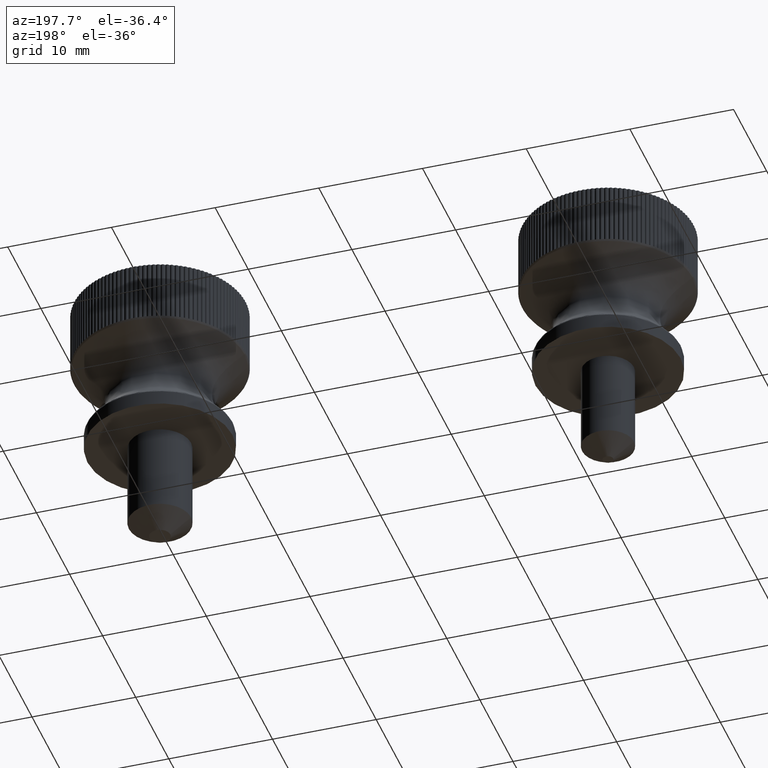
[diagram: clean part render]
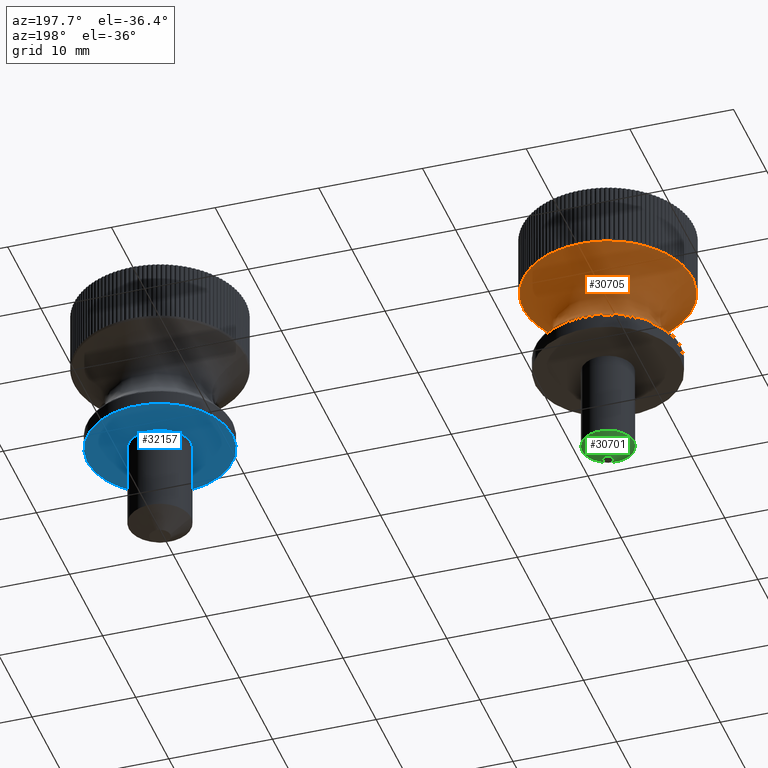
[diagram: same view with three faces highlighted in distinct colors, each labeled with its STEP entity id]
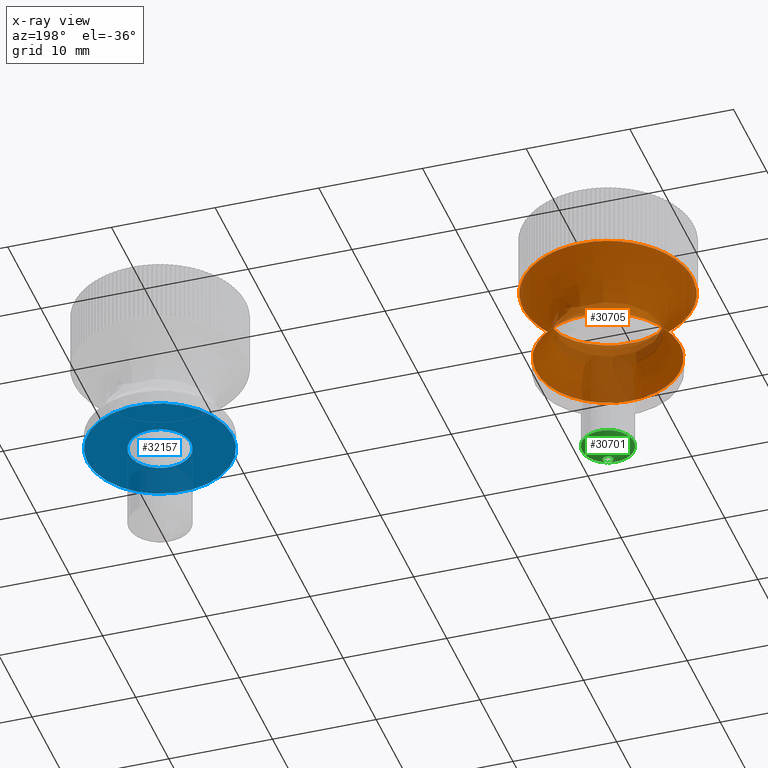
[diagram: x-ray of the same camera — body ghosted, the three highlighted faces saturated]
A machine part, auxiliary view with three faces highlighted in distinct colors.
The next image is the same camera in x-ray (body ghosted, the three faces saturated) — at least one of them is partly hidden behind the body in this view.
Their STEP definitions:

[orange] entity #30705 — the highlighted face is a freeform B-spline surface patch.
#2428=B_SPLINE_CURVE_WITH_KNOTS('',3,(#45505,#45506,#45507,#45508,#45509,
#45510,#45511,#45512,#45513,#45514),.UNSPECIFIED.,.T.,.F.,(4,1,1,1,1,1,
1,4),(0.,0.897597901025655,1.79519580205131,2.69279370307697,3.59039160410262,
4.48798950512828,5.38558740615393,6.28318530717959),.UNSPECIFIED.);
#2429=B_SPLINE_CURVE_WITH_KNOTS('',3,(#45584,#45585,#45586,#45587,#45588,
#45589),.UNSPECIFIED.,.F.,.F.,(4,2,4),(0.00706038556069299,0.438881228920565,
0.991385236136452),.UNSPECIFIED.);
#2430=B_SPLINE_CURVE_WITH_KNOTS('',3,(#45590,#45591,#45592,#45593,#45594,
#45595,#45596,#45597,#45598,#45599,#45600,#45601,#45602,#45603,#45604,#45605,
#45606),.UNSPECIFIED.,.T.,.F.,(4,1,1,1,1,1,1,1,1,1,1,1,1,1,4),(-3.14159265358979,
-2.69279370307697,-2.24399475256414,-1.79519580205131,-1.34639685153848,
-0.897597901025655,-0.448798950512828,-0.149599650170943,0.448798950512828,
0.897597901025655,1.34639685153848,1.79519580205131,2.24399475256414,2.69279370307697,
3.14159265358979),.UNSPECIFIED.);
#4362=B_SPLINE_SURFACE_WITH_KNOTS('',3,3,((#45515,#45516,#45517,#45518),
(#45519,#45520,#45521,#45522),(#45523,#45524,#45525,#45526),(#45527,#45528,
#45529,#45530),(#45531,#45532,#45533,#45534),(#45535,#45536,#45537,#45538),
(#45539,#45540,#45541,#45542),(#45543,#45544,#45545,#45546),(#45547,#45548,
#45549,#45550),(#45551,#45552,#45553,#45554),(#45555,#45556,#45557,#45558),
(#45559,#45560,#45561,#45562),(#45563,#45564,#45565,#45566),(#45567,#45568,
#45569,#45570),(#45571,#45572,#45573,#45574),(#45575,#45576,#45577,#45578),
(#45579,#45580,#45581,#45582)),.UNSPECIFIED.,.T.,.F.,.F.,(4,1,1,1,1,1,1,
1,1,1,1,1,1,1,4),(4,4),(-5.24696346380969E-33,0.0714285714285714,0.142857142857143,
0.214285714285714,0.285714285714286,0.357142857142857,0.428571428571429,
0.476190476190476,0.571428571428571,0.619047619047619,0.714285714285714,
0.785714285714286,0.857142857142857,0.928571428571429,1.),(0.00706038556069277,
0.991385236136452),.UNSPECIFIED.);
#6069=FACE_OUTER_BOUND('',#8249,.T.);
#8249=EDGE_LOOP('',(#20576,#20577,#20578,#20579));
#12604=VERTEX_POINT('',#45492);
#12606=VERTEX_POINT('',#45583);
#15506=EDGE_CURVE('',#12604,#12604,#2428,.T.);
#15507=EDGE_CURVE('',#12604,#12606,#2429,.T.);
#15508=EDGE_CURVE('',#12606,#12606,#2430,.T.);
#20576=ORIENTED_EDGE('',*,*,#15506,.F.);
#20577=ORIENTED_EDGE('',*,*,#15507,.T.);
#20578=ORIENTED_EDGE('',*,*,#15508,.F.);
#20579=ORIENTED_EDGE('',*,*,#15507,.F.);
#30705=ADVANCED_FACE('',(#6069),#4362,.T.);
#45492=CARTESIAN_POINT('',(-6.93627314721261,-1.18558281596421E-15,1.55888525799984));
#45505=CARTESIAN_POINT('Ctrl Pts',(-6.9410122677611,0.000142491652813912,
1.55888525799984));
#45506=CARTESIAN_POINT('Ctrl Pts',(-6.94073269133758,2.06964195002988,1.55888525799984));
#45507=CARTESIAN_POINT('Ctrl Pts',(-4.95034509371512,6.20569705457734,1.55888525799984));
#45508=CARTESIAN_POINT('Ctrl Pts',(1.76796414997845,7.74568170890814,1.55888525799984));
#45509=CARTESIAN_POINT('Ctrl Pts',(7.15027366841787,3.44311571488876,1.55888525799984));
#45510=CARTESIAN_POINT('Ctrl Pts',(7.15738775485074,-3.44652091877162,1.55888525799984));
#45511=CARTESIAN_POINT('Ctrl Pts',(1.76576836259289,-7.73728883380656,1.55888525799984));
#45512=CARTESIAN_POINT('Ctrl Pts',(-4.95202255225623,-6.21129969568504,
1.55888525799984));
#45513=CARTESIAN_POINT('Ctrl Pts',(-6.94129184418462,-2.06935696672425,
1.55888525799984));
#45514=CARTESIAN_POINT('Ctrl Pts',(-6.9410122677611,0.000142491652813912,
1.55888525799984));
#45515=CARTESIAN_POINT('Ctrl Pts',(-6.93659509277099,-2.64434204536289E-5,
1.55888525799984));
#45516=CARTESIAN_POINT('Ctrl Pts',(-3.99898448638526,-4.49854883233764E-5,
4.29342436986928));
#45517=CARTESIAN_POINT('Ctrl Pts',(-4.40387383724155,-5.47268835152633E-5,
6.75466806568818));
#45518=CARTESIAN_POINT('Ctrl Pts',(-8.15122335976201,-3.10737795189008E-5,
8.94261634545652));
#45519=CARTESIAN_POINT('Ctrl Pts',(-6.93655570876999,-1.03749061785009,
1.55888525799984));
#45520=CARTESIAN_POINT('Ctrl Pts',(-3.99898752326789,-0.598164021897022,
4.29342436986928));
#45521=CARTESIAN_POINT('Ctrl Pts',(-4.403881670935,-0.658734820782433,6.75466806568819));
#45522=CARTESIAN_POINT('Ctrl Pts',(-8.15117707944946,-1.2191597818023,8.94261634545652));
#45523=CARTESIAN_POINT('Ctrl Pts',(-6.46308137475766,-3.11256940948825,
1.55888525799984));
#45524=CARTESIAN_POINT('Ctrl Pts',(-3.72594845020308,-1.79440682829829,
4.29342436986928));
#45525=CARTESIAN_POINT('Ctrl Pts',(-4.10318422458277,-1.97608592128289,
6.75466806568818));
#45526=CARTESIAN_POINT('Ctrl Pts',(-7.59479531000307,-3.65759398381809,
8.94261634545651));
#45527=CARTESIAN_POINT('Ctrl Pts',(-4.47295872184112,-5.60896599974282,
1.55888525799984));
#45528=CARTESIAN_POINT('Ctrl Pts',(-2.57870061478446,-3.23378001637687,
4.29342436986928));
#45529=CARTESIAN_POINT('Ctrl Pts',(-2.83979175682371,-3.56122545468017,
6.75466806568817));
#45530=CARTESIAN_POINT('Ctrl Pts',(-5.25619343973525,-6.59112058145961,
8.9426163454565));
#45531=CARTESIAN_POINT('Ctrl Pts',(-1.59595728182452,-6.99323126397291,
1.55888525799984));
#45532=CARTESIAN_POINT('Ctrl Pts',(-0.920165162855635,-4.0314680861249,
4.29342436986927));
#45533=CARTESIAN_POINT('Ctrl Pts',(-1.01334528849677,-4.43961713355039,
6.75466806568817));
#45534=CARTESIAN_POINT('Ctrl Pts',(-1.8754164114823,-8.21777677329334,8.9426163454565));
#45535=CARTESIAN_POINT('Ctrl Pts',(1.59531222920229,-6.99348773614617,1.55888525799984));
#45536=CARTESIAN_POINT('Ctrl Pts',(0.91989036600288,-4.03156921862864,4.29342436986928));
#45537=CARTESIAN_POINT('Ctrl Pts',(1.01305959940466,-4.43972035678931,6.75466806568816));
#45538=CARTESIAN_POINT('Ctrl Pts',(1.87465840731279,-8.21807815487059,8.9426163454565));
#45539=CARTESIAN_POINT('Ctrl Pts',(4.47334228236746,-5.60797117948955,1.55888525799984));
#45540=CARTESIAN_POINT('Ctrl Pts',(2.57796903899002,-3.23303771902565,4.29342436986928));
#45541=CARTESIAN_POINT('Ctrl Pts',(2.83881996194001,-3.56037856671523,6.75466806568816));
#45542=CARTESIAN_POINT('Ctrl Pts',(5.25664416339439,-6.58995156381063,8.9426163454565));
#45543=CARTESIAN_POINT('Ctrl Pts',(6.23946520170621,-3.39020877999017,1.55888525799984));
#45544=CARTESIAN_POINT('Ctrl Pts',(3.59802952831995,-1.95423955104638,4.29342436986928));
#45545=CARTESIAN_POINT('Ctrl Pts',(3.9624876378636,-2.15206165405761,6.75466806568817));
#45546=CARTESIAN_POINT('Ctrl Pts',(7.33202296290484,-3.98384922751588,8.9426163454565));
#45547=CARTESIAN_POINT('Ctrl Pts',(7.17229747483685,-0.379481484938928,
1.55888525799984));
#45548=CARTESIAN_POINT('Ctrl Pts',(4.13396678016579,-0.219134788096569,
4.29342436986928));
#45549=CARTESIAN_POINT('Ctrl Pts',(4.55236562208221,-0.241384829866832,
6.75466806568816));
#45550=CARTESIAN_POINT('Ctrl Pts',(8.42819826415697,-0.445930359673868,
8.9426163454565));
#45551=CARTESIAN_POINT('Ctrl Pts',(6.74112220881939,2.47613920050433,1.55888525799984));
#45552=CARTESIAN_POINT('Ctrl Pts',(3.88650642503551,1.42786777823971,4.29342436986927));
#45553=CARTESIAN_POINT('Ctrl Pts',(4.28004475829902,1.57249940883918,6.75466806568817));
#45554=CARTESIAN_POINT('Ctrl Pts',(7.92152231529326,2.90972204997344,8.9426163454565));
#45555=CARTESIAN_POINT('Ctrl Pts',(4.76754469364469,5.36975566562131,1.55888525799984));
#45556=CARTESIAN_POINT('Ctrl Pts',(2.74886818005904,3.09555472852831,4.29342436986928));
#45557=CARTESIAN_POINT('Ctrl Pts',(3.02724725540437,3.40894945241564,6.75466806568816));
#45558=CARTESIAN_POINT('Ctrl Pts',(5.60236270905384,6.31002346719677,8.9426163454565));
#45559=CARTESIAN_POINT('Ctrl Pts',(1.9543276572283,6.99738667408694,1.55888525799984));
#45560=CARTESIAN_POINT('Ctrl Pts',(1.12617085742253,4.03385298858422,4.29342436986927));
#45561=CARTESIAN_POINT('Ctrl Pts',(1.24010458300473,4.4422416342415,6.75466806568817));
#45562=CARTESIAN_POINT('Ctrl Pts',(2.29653901361924,8.22265981396934,8.9426163454565));
#45563=CARTESIAN_POINT('Ctrl Pts',(-1.59757264271848,6.99173205713629,1.55888525799984));
#45564=CARTESIAN_POINT('Ctrl Pts',(-0.920660157411978,4.03073757760071,
4.29342436986928));
#45565=CARTESIAN_POINT('Ctrl Pts',(-1.01381431598822,4.43883599549537,6.75466806568816));
#45566=CARTESIAN_POINT('Ctrl Pts',(-1.87731462916363,8.21601504875496,8.9426163454565));
#45567=CARTESIAN_POINT('Ctrl Pts',(-4.47166126029394,5.60915551447088,1.55888525799984));
#45568=CARTESIAN_POINT('Ctrl Pts',(-2.57800781000917,3.23354607662608,4.29342436986928));
#45569=CARTESIAN_POINT('Ctrl Pts',(-2.83903843170414,3.56090797650199,6.75466806568817));
#45570=CARTESIAN_POINT('Ctrl Pts',(-5.25466878697257,6.59134328104892,8.9426163454565));
#45571=CARTESIAN_POINT('Ctrl Pts',(-6.46331767876363,3.11221563708956,1.55888525799984));
#45572=CARTESIAN_POINT('Ctrl Pts',(-3.72593022890732,1.7943073901539,4.29342436986928));
#45573=CARTESIAN_POINT('Ctrl Pts',(-4.10313722242205,1.97599464211061,6.75466806568817));
#45574=CARTESIAN_POINT('Ctrl Pts',(-7.59507299187836,3.65717826431859,8.9426163454565));
#45575=CARTESIAN_POINT('Ctrl Pts',(-6.93663447677198,1.03743773100918,1.55888525799984));
#45576=CARTESIAN_POINT('Ctrl Pts',(-3.99898144950263,0.598074050920375,
4.29342436986928));
#45577=CARTESIAN_POINT('Ctrl Pts',(-4.40386600354809,0.658625367015402,
6.75466806568818));
#45578=CARTESIAN_POINT('Ctrl Pts',(-8.15126964007456,1.21909763424326,8.94261634545652));
#45579=CARTESIAN_POINT('Ctrl Pts',(-6.93659509277099,-2.64434204536289E-5,
1.55888525799984));
#45580=CARTESIAN_POINT('Ctrl Pts',(-3.99898448638526,-4.49854883233764E-5,
4.29342436986928));
#45581=CARTESIAN_POINT('Ctrl Pts',(-4.40387383724155,-5.47268835152633E-5,
6.75466806568818));
#45582=CARTESIAN_POINT('Ctrl Pts',(-8.15122335976201,-3.10737795189008E-5,
8.94261634545652));
#45583=CARTESIAN_POINT('',(-8.15084504012234,-1.75274469428049E-15,8.9426163454565));
#45584=CARTESIAN_POINT('Ctrl Pts',(-6.93627314721261,-1.19417045999603E-17,
1.55888525799984));
#45585=CARTESIAN_POINT('Ctrl Pts',(-5.64758944876273,-2.54700537712144E-16,
2.75852070842793));
#45586=CARTESIAN_POINT('Ctrl Pts',(-5.00216506635853,-4.54827769370049E-16,
3.90555895576132));
#45587=CARTESIAN_POINT('Ctrl Pts',(-4.99722985155216,-8.13835133304365E-16,
6.40031004038283));
#45588=CARTESIAN_POINT('Ctrl Pts',(-6.04751153159294,-9.45556527831262E-16,
7.71451548886833));
#45589=CARTESIAN_POINT('Ctrl Pts',(-8.15084504012234,-1.00748758315437E-15,
8.9426163454565));
#45590=CARTESIAN_POINT('Ctrl Pts',(-8.15117333212948,2.02688610123641E-5,
8.94261634545648));
#45591=CARTESIAN_POINT('Ctrl Pts',(-8.15115849508877,-1.2191040241732,8.94261634545648));
#45592=CARTESIAN_POINT('Ctrl Pts',(-7.59480857500514,-3.65738650432062,
8.9426163454565));
#45593=CARTESIAN_POINT('Ctrl Pts',(-5.25602581266636,-6.59030474257856,
8.9426163454565));
#45594=CARTESIAN_POINT('Ctrl Pts',(-1.87547417704478,-8.2181584666592,8.94261634545649));
#45595=CARTESIAN_POINT('Ctrl Pts',(1.87499570834052,-8.21832555364966,8.94261634545651));
#45596=CARTESIAN_POINT('Ctrl Pts',(5.25688616423478,-6.59056315012199,8.94261634545649));
#45597=CARTESIAN_POINT('Ctrl Pts',(7.33194100023062,-3.98330331960709,8.9426163454565));
#45598=CARTESIAN_POINT('Ctrl Pts',(8.42812123831523,-0.446873616960778,
8.94261634545649));
#45599=CARTESIAN_POINT('Ctrl Pts',(7.86088313453604,3.33179503869472,8.9426163454565));
#45600=CARTESIAN_POINT('Ctrl Pts',(5.25297598715921,6.59021521319749,8.9426163454565));
#45601=CARTESIAN_POINT('Ctrl Pts',(1.87725224730608,8.21823265180251,8.94261634545649));
#45602=CARTESIAN_POINT('Ctrl Pts',(-1.87630261134814,8.21795848021363,8.94261634545651));
#45603=CARTESIAN_POINT('Ctrl Pts',(-5.25551532702722,6.59089113687171,8.94261634545648));
#45604=CARTESIAN_POINT('Ctrl Pts',(-7.59489759724946,3.65735925388466,8.94261634545651));
#45605=CARTESIAN_POINT('Ctrl Pts',(-8.1511881691702,1.21914456189523,8.94261634545648));
#45606=CARTESIAN_POINT('Ctrl Pts',(-8.15117333212948,2.02688610123625E-5,
8.94261634545648));

[blue] entity #32157 — the highlighted planar face has unit normal (0, 0, 1).
#5092=PLANE('',#35664);
#6064=FACE_BOUND('',#9707,.T.);
#7521=FACE_OUTER_BOUND('',#9706,.T.);
#9706=EDGE_LOOP('',(#27693));
#9707=EDGE_LOOP('',(#27694));
#11517=CIRCLE('',#34818,3.);
#11519=CIRCLE('',#34822,7.);
#14053=VERTEX_POINT('',#60815);
#14057=VERTEX_POINT('',#60974);
#18036=EDGE_CURVE('',#14053,#14053,#11517,.T.);
#18042=EDGE_CURVE('',#14057,#14057,#11519,.T.);
#27693=ORIENTED_EDGE('',*,*,#18042,.T.);
#27694=ORIENTED_EDGE('',*,*,#18036,.T.);
#32157=ADVANCED_FACE('',(#7521,#6064),#5092,.F.);
#34818=AXIS2_PLACEMENT_3D('',#60816,#41102,#41103);
#34822=AXIS2_PLACEMENT_3D('',#60975,#41110,#41111);
#35664=AXIS2_PLACEMENT_3D('',#65784,#43154,#43155);
#41102=DIRECTION('center_axis',(0.,0.,1.));
#41103=DIRECTION('ref_axis',(1.,0.,0.));
#41110=DIRECTION('center_axis',(0.,0.,-1.));
#41111=DIRECTION('ref_axis',(-1.,0.,0.));
#43154=DIRECTION('center_axis',(0.,0.,1.));
#43155=DIRECTION('ref_axis',(1.,0.,0.));
#60815=CARTESIAN_POINT('',(-3.,3.67394039744206E-16,0.));
#60816=CARTESIAN_POINT('Origin',(0.,0.,0.));
#60974=CARTESIAN_POINT('',(7.,8.57252759403147E-16,0.));
#60975=CARTESIAN_POINT('Origin',(0.,0.,0.));
#65784=CARTESIAN_POINT('Origin',(-3.35776545337204E-16,1.32169407693471E-16,
0.));

[green] entity #30701 — the highlighted conical surface has half-angle 53.13 deg.
#6057=FACE_BOUND('',#8244,.T.);
#6065=FACE_OUTER_BOUND('',#8243,.T.);
#8243=EDGE_LOOP('',(#20567));
#8244=EDGE_LOOP('',(#20568));
#10429=CIRCLE('',#32883,2.5);
#10430=CIRCLE('',#32884,0.5);
#12601=VERTEX_POINT('',#45444);
#12602=VERTEX_POINT('',#45446);
#15501=EDGE_CURVE('',#12601,#12601,#10429,.T.);
#15502=EDGE_CURVE('',#12602,#12602,#10430,.T.);
#20567=ORIENTED_EDGE('',*,*,#15501,.T.);
#20568=ORIENTED_EDGE('',*,*,#15502,.T.);
#30699=CONICAL_SURFACE('',#32882,1.5,53.130102354156);
#30701=ADVANCED_FACE('',(#6065,#6057),#30699,.T.);
#32882=AXIS2_PLACEMENT_3D('',#45443,#36750,#36751);
#32883=AXIS2_PLACEMENT_3D('',#45445,#36752,#36753);
#32884=AXIS2_PLACEMENT_3D('',#45447,#36754,#36755);
#36750=DIRECTION('center_axis',(0.,0.,1.));
#36751=DIRECTION('ref_axis',(1.,0.,0.));
#36752=DIRECTION('center_axis',(0.,0.,-1.));
#36753=DIRECTION('ref_axis',(1.,0.,0.));
#36754=DIRECTION('center_axis',(0.,0.,1.));
#36755=DIRECTION('ref_axis',(1.,0.,0.));
#45443=CARTESIAN_POINT('Origin',(0.,0.,-9.25));
#45444=CARTESIAN_POINT('',(-2.5,3.06161699786838E-16,-8.5));
#45445=CARTESIAN_POINT('Origin',(0.,0.,-8.5));
#45446=CARTESIAN_POINT('',(-0.5,-6.12323399573676E-17,-10.));
#45447=CARTESIAN_POINT('Origin',(0.,0.,-10.));